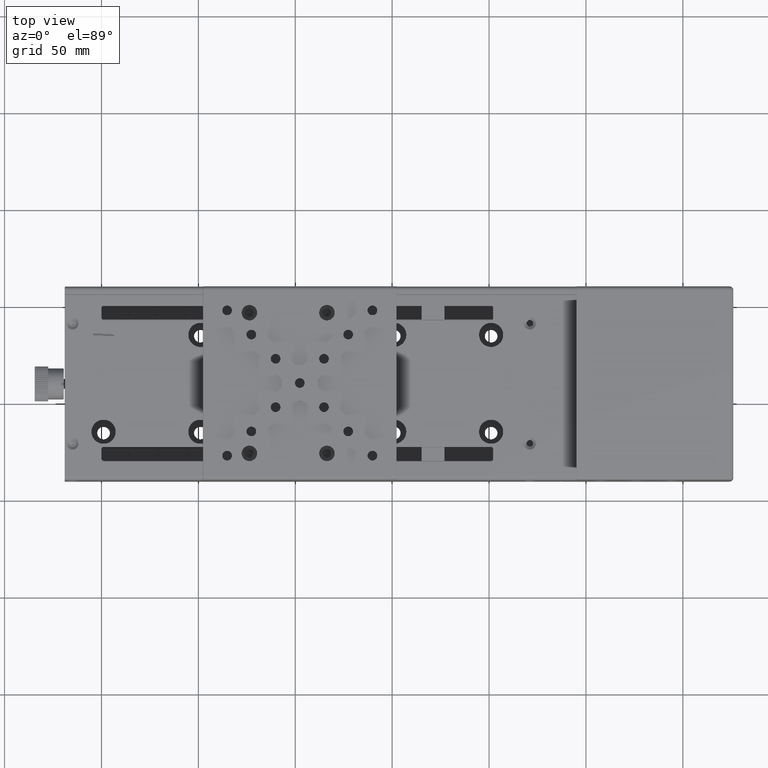
[diagram: clean part render]
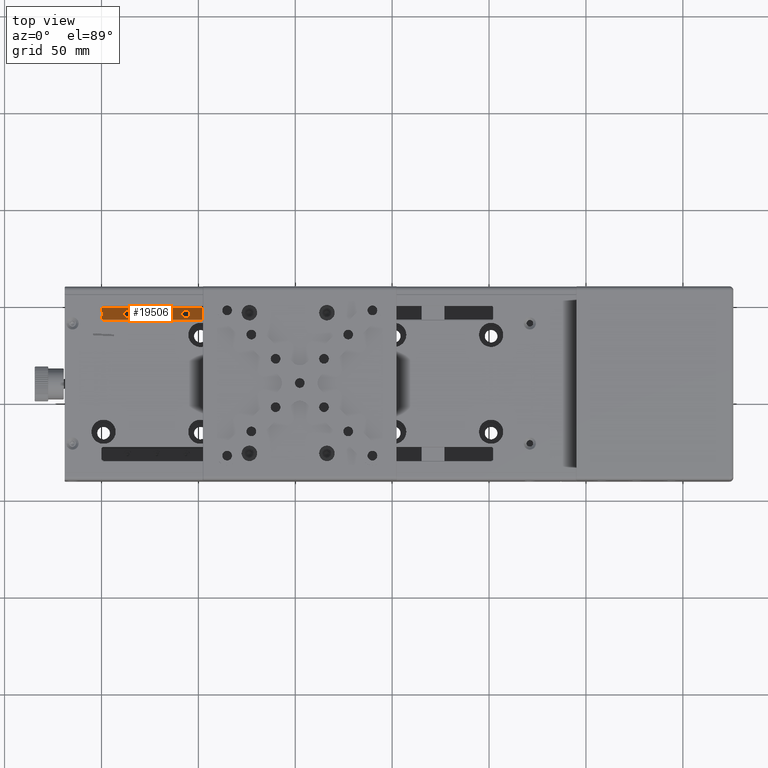
[diagram: same view with one face highlighted and labeled with its STEP entity id]
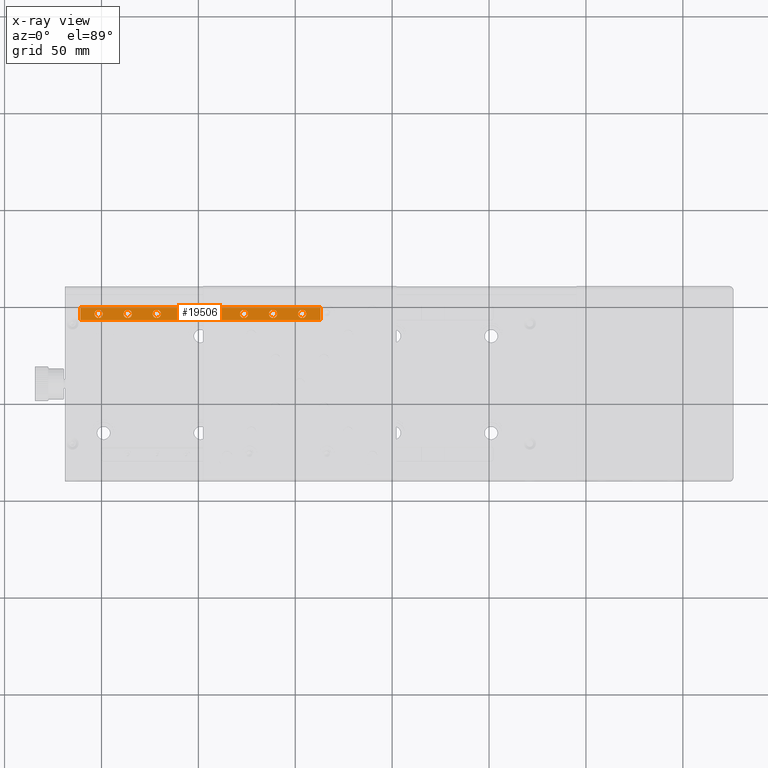
[diagram: x-ray of the same camera — body ghosted, the highlighted face saturated]
A machine part, top view. The second image highlights one B-rep face of the part: STEP entity #19506.
The next image is the same camera in x-ray: the body ghosted, the highlighted face saturated — about 0% of this face is hidden behind the body in this view.
In plain terms, the highlighted planar face has unit normal (0, 0, -1).
Its self-contained STEP definition (entity closure, byte-faithful):
#141 = VERTEX_POINT ( 'NONE', #1693 ) ;
#396 = CARTESIAN_POINT ( 'NONE',  ( -119.3607912002899951, 46.29424858742449800, 10.80000000000000071 ) ) ;
#442 = AXIS2_PLACEMENT_3D ( 'NONE', #9635, #38393, #14472 ) ;
#557 = DIRECTION ( 'NONE',  ( 0.000000000000000000, 0.000000000000000000, 1.000000000000000000 ) ) ;
#847 = VECTOR ( 'NONE', #65833, 1000.000000000000000 ) ;
#1196 = CARTESIAN_POINT ( 'NONE',  ( -136.4607912002899752, 46.29424858742449800, 10.80000000000000071 ) ) ;
#1414 = CIRCLE ( 'NONE', #49619, 2.099999999999990763 ) ;
#1433 = ORIENTED_EDGE ( 'NONE', *, *, #23198, .F. ) ;
#1693 = CARTESIAN_POINT ( 'NONE',  ( -48.56079120029010454, 46.29424858742449800, 10.80000000000000071 ) ) ;
#1811 = DIRECTION ( 'NONE',  ( 0.000000000000000000, 0.000000000000000000, 1.000000000000000000 ) ) ;
#2874 = CARTESIAN_POINT ( 'NONE',  ( -93.56079120029011165, 46.29424858742449800, 10.80000000000000071 ) ) ;
#2880 = DIRECTION ( 'NONE',  ( -1.000000000000000000, 0.000000000000000000, 0.000000000000000000 ) ) ;
#3011 = CIRCLE ( 'NONE', #5314, 2.100000000000004530 ) ;
#3241 = ORIENTED_EDGE ( 'NONE', *, *, #14862, .F. ) ;
#4495 = CARTESIAN_POINT ( 'NONE',  ( -36.96079120029010312, 42.79424858742454774, 10.80000000000000071 ) ) ;
#4522 = DIRECTION ( 'NONE',  ( 0.000000000000000000, 0.000000000000000000, 1.000000000000000000 ) ) ;
#4941 = FACE_BOUND ( 'NONE', #66453, .T. ) ;
#5314 = AXIS2_PLACEMENT_3D ( 'NONE', #52534, #8647, #42575 ) ;
#5318 = FACE_BOUND ( 'NONE', #48326, .T. ) ;
#6160 = DIRECTION ( 'NONE',  ( 0.000000000000000000, 0.000000000000000000, 1.000000000000000000 ) ) ;
#6773 = AXIS2_PLACEMENT_3D ( 'NONE', #53307, #43251, #30470 ) ;
#7120 = VERTEX_POINT ( 'NONE', #34749 ) ;
#7777 = CARTESIAN_POINT ( 'NONE',  ( -149.3607912002902083, 46.29424858742449800, 10.80000000000000071 ) ) ;
#7943 = AXIS2_PLACEMENT_3D ( 'NONE', #72066, #557, #56192 ) ;
#8266 = EDGE_CURVE ( 'NONE', #7120, #49718, #61297, .T. ) ;
#8647 = DIRECTION ( 'NONE',  ( 0.000000000000000000, 0.000000000000000000, 1.000000000000000000 ) ) ;
#8971 = DIRECTION ( 'NONE',  ( -1.000000000000000000, 0.000000000000000000, 0.000000000000000000 ) ) ;
#9076 = ORIENTED_EDGE ( 'NONE', *, *, #65692, .F. ) ;
#9635 = CARTESIAN_POINT ( 'NONE',  ( -106.4607912002900036, 46.29424858742449800, 10.80000000000000071 ) ) ;
#9749 = FACE_OUTER_BOUND ( 'NONE', #10503, .T. ) ;
#9879 = DIRECTION ( 'NONE',  ( 0.000000000000000000, 0.000000000000000000, 1.000000000000000000 ) ) ;
#10345 = ORIENTED_EDGE ( 'NONE', *, *, #32113, .F. ) ;
#10503 = EDGE_LOOP ( 'NONE', ( #12932, #1433, #65354, #56944 ) ) ;
#10568 = EDGE_CURVE ( 'NONE', #48257, #45232, #47032, .T. ) ;
#12352 = EDGE_LOOP ( 'NONE', ( #20516, #63888 ) ) ;
#12354 = DIRECTION ( 'NONE',  ( -1.000000000000000000, 0.000000000000000000, 0.000000000000000000 ) ) ;
#12462 = EDGE_CURVE ( 'NONE', #72781, #63702, #27221, .T. ) ;
#12607 = DIRECTION ( 'NONE',  ( -1.000000000000000000, 0.000000000000000000, 0.000000000000000000 ) ) ;
#12639 = CIRCLE ( 'NONE', #26766, 2.100000000000004530 ) ;
#12932 = ORIENTED_EDGE ( 'NONE', *, *, #23256, .F. ) ;
#13228 = CARTESIAN_POINT ( 'NONE',  ( -151.4607912002900036, 46.29424858742449800, 10.80000000000000071 ) ) ;
#13536 = VECTOR ( 'NONE', #21818, 1000.000000000000000 ) ;
#13691 = DIRECTION ( 'NONE',  ( 0.000000000000000000, 0.000000000000000000, 1.000000000000000000 ) ) ;
#14472 = DIRECTION ( 'NONE',  ( -1.000000000000000000, 0.000000000000000000, 0.000000000000000000 ) ) ;
#14481 = ORIENTED_EDGE ( 'NONE', *, *, #47800, .F. ) ;
#14862 = EDGE_CURVE ( 'NONE', #51476, #67064, #71429, .T. ) ;
#15065 = CARTESIAN_POINT ( 'NONE',  ( -91.46079120029010312, 46.29424858742449800, 10.80000000000000071 ) ) ;
#15238 = AXIS2_PLACEMENT_3D ( 'NONE', #19824, #1811, #2880 ) ;
#15302 = FACE_BOUND ( 'NONE', #29242, .T. ) ;
#15332 = CARTESIAN_POINT ( 'NONE',  ( -76.46079120029010312, 46.29424858742449800, 10.80000000000000071 ) ) ;
#15415 = EDGE_CURVE ( 'NONE', #67064, #51476, #60842, .T. ) ;
#15951 = EDGE_LOOP ( 'NONE', ( #42545, #31525 ) ) ;
#16784 = DIRECTION ( 'NONE',  ( 0.000000000000000000, 0.000000000000000000, 1.000000000000000000 ) ) ;
#17428 = CARTESIAN_POINT ( 'NONE',  ( -134.3607912002899809, 46.29424858742449800, 10.80000000000000071 ) ) ;
#18321 = CIRCLE ( 'NONE', #32405, 2.099999999999990763 ) ;
#19273 = CIRCLE ( 'NONE', #442, 2.100000000000004530 ) ;
#19506 = ADVANCED_FACE ( 'NONE', ( #15302, #50657, #4941, #49556, #27808, #49928, #20814, #5318, #9749 ), #43315, .F. ) ;
#19824 = CARTESIAN_POINT ( 'NONE',  ( -61.46079120029010312, 46.29424858742449800, 10.80000000000000071 ) ) ;
#20023 = CARTESIAN_POINT ( 'NONE',  ( -61.46079120029010312, 46.29424858742449800, 10.80000000000000071 ) ) ;
#20158 = ORIENTED_EDGE ( 'NONE', *, *, #10568, .F. ) ;
#20473 = CARTESIAN_POINT ( 'NONE',  ( -108.5607912002900122, 46.29424858742449800, 10.80000000000000071 ) ) ;
#20493 = ORIENTED_EDGE ( 'NONE', *, *, #54323, .F. ) ;
#20516 = ORIENTED_EDGE ( 'NONE', *, *, #21015, .F. ) ;
#20814 = FACE_BOUND ( 'NONE', #15951, .T. ) ;
#21015 = EDGE_CURVE ( 'NONE', #141, #37648, #35205, .T. ) ;
#21326 = AXIS2_PLACEMENT_3D ( 'NONE', #52034, #16784, #61753 ) ;
#21818 = DIRECTION ( 'NONE',  ( 1.000000000000000000, 0.000000000000000000, 0.000000000000000000 ) ) ;
#22264 = VERTEX_POINT ( 'NONE', #54069 ) ;
#22289 = DIRECTION ( 'NONE',  ( 0.000000000000000000, -1.000000000000000000, 0.000000000000000000 ) ) ;
#22662 = VECTOR ( 'NONE', #32380, 1000.000000000000000 ) ;
#22927 = LINE ( 'NONE', #4495, #42944 ) ;
#23198 = EDGE_CURVE ( 'NONE', #36763, #67464, #66445, .T. ) ;
#23256 = EDGE_CURVE ( 'NONE', #67464, #25721, #22927, .T. ) ;
#24294 = DIRECTION ( 'NONE',  ( -1.000000000000000000, 0.000000000000000000, 0.000000000000000000 ) ) ;
#25721 = VERTEX_POINT ( 'NONE', #50581 ) ;
#25835 = DIRECTION ( 'NONE',  ( -1.000000000000000000, 0.000000000000000000, 0.000000000000000000 ) ) ;
#26288 = CARTESIAN_POINT ( 'NONE',  ( -44.36079120029010170, 46.29424858742449800, 10.80000000000000071 ) ) ;
#26549 = DIRECTION ( 'NONE',  ( 0.000000000000000000, 0.000000000000000000, 1.000000000000000000 ) ) ;
#26766 = AXIS2_PLACEMENT_3D ( 'NONE', #15332, #53311, #58831 ) ;
#26882 = CIRCLE ( 'NONE', #66954, 2.100000000000004530 ) ;
#27112 = CARTESIAN_POINT ( 'NONE',  ( -63.56079120029009744, 46.29424858742449800, 10.80000000000000071 ) ) ;
#27221 = CIRCLE ( 'NONE', #21326, 2.100000000000004530 ) ;
#27808 = FACE_BOUND ( 'NONE', #12352, .T. ) ;
#29242 = EDGE_LOOP ( 'NONE', ( #10345, #20493 ) ) ;
#30470 = DIRECTION ( 'NONE',  ( -1.000000000000000000, 0.000000000000000000, 0.000000000000000000 ) ) ;
#31038 = VERTEX_POINT ( 'NONE', #67628 ) ;
#31525 = ORIENTED_EDGE ( 'NONE', *, *, #48043, .F. ) ;
#32113 = EDGE_CURVE ( 'NONE', #22264, #59761, #18321, .T. ) ;
#32253 = DIRECTION ( 'NONE',  ( 0.000000000000000000, 0.000000000000000000, -1.000000000000000000 ) ) ;
#32380 = DIRECTION ( 'NONE',  ( -1.000000000000000000, 0.000000000000000000, 0.000000000000000000 ) ) ;
#32405 = AXIS2_PLACEMENT_3D ( 'NONE', #13228, #52652, #24294 ) ;
#32910 = CARTESIAN_POINT ( 'NONE',  ( -46.46079120029009601, 46.29424858742449800, 10.80000000000000071 ) ) ;
#33193 = CARTESIAN_POINT ( 'NONE',  ( -123.5607912002900122, 46.29424858742449800, 10.80000000000000071 ) ) ;
#33650 = DIRECTION ( 'NONE',  ( -1.000000000000000000, 0.000000000000000000, 0.000000000000000000 ) ) ;
#33765 = AXIS2_PLACEMENT_3D ( 'NONE', #15065, #9879, #38263 ) ;
#33993 = EDGE_LOOP ( 'NONE', ( #60649, #39204 ) ) ;
#34749 = CARTESIAN_POINT ( 'NONE',  ( -138.5607912002899980, 46.29424858742449800, 10.80000000000000071 ) ) ;
#35205 = CIRCLE ( 'NONE', #57550, 2.099999999999997868 ) ;
#36156 = ORIENTED_EDGE ( 'NONE', *, *, #44749, .F. ) ;
#36187 = AXIS2_PLACEMENT_3D ( 'NONE', #20023, #64294, #8971 ) ;
#36705 = EDGE_CURVE ( 'NONE', #41111, #36763, #38903, .T. ) ;
#36763 = VERTEX_POINT ( 'NONE', #39654 ) ;
#36949 = EDGE_CURVE ( 'NONE', #45232, #48257, #40898, .T. ) ;
#37648 = VERTEX_POINT ( 'NONE', #26288 ) ;
#38263 = DIRECTION ( 'NONE',  ( -1.000000000000000000, 0.000000000000000000, 0.000000000000000000 ) ) ;
#38393 = DIRECTION ( 'NONE',  ( 0.000000000000000000, 0.000000000000000000, 1.000000000000000000 ) ) ;
#38774 = CARTESIAN_POINT ( 'NONE',  ( -219.9607912002900036, 49.59424858742449516, 10.80000000000000071 ) ) ;
#38903 = LINE ( 'NONE', #49225, #847 ) ;
#39186 = CARTESIAN_POINT ( 'NONE',  ( -136.4607912002899752, 46.29424858742449800, 10.80000000000000071 ) ) ;
#39204 = ORIENTED_EDGE ( 'NONE', *, *, #62389, .F. ) ;
#39372 = DIRECTION ( 'NONE',  ( -1.000000000000000000, 0.000000000000000000, 0.000000000000000000 ) ) ;
#39654 = CARTESIAN_POINT ( 'NONE',  ( -160.9607912002900036, 49.59424858742449516, 10.80000000000000071 ) ) ;
#39839 = EDGE_CURVE ( 'NONE', #25721, #41111, #70377, .T. ) ;
#40898 = CIRCLE ( 'NONE', #36187, 2.100000000000004530 ) ;
#40968 = EDGE_LOOP ( 'NONE', ( #36156, #9076 ) ) ;
#41111 = VERTEX_POINT ( 'NONE', #71835 ) ;
#42104 = CIRCLE ( 'NONE', #6773, 2.099999999999997868 ) ;
#42545 = ORIENTED_EDGE ( 'NONE', *, *, #12462, .F. ) ;
#42575 = DIRECTION ( 'NONE',  ( -1.000000000000000000, 0.000000000000000000, 0.000000000000000000 ) ) ;
#42944 = VECTOR ( 'NONE', #45413, 1000.000000000000000 ) ;
#43251 = DIRECTION ( 'NONE',  ( 0.000000000000000000, 0.000000000000000000, 1.000000000000000000 ) ) ;
#43315 = PLANE ( 'NONE',  #72835 ) ;
#44461 = VERTEX_POINT ( 'NONE', #20473 ) ;
#44749 = EDGE_CURVE ( 'NONE', #44461, #31038, #19273, .T. ) ;
#45232 = VERTEX_POINT ( 'NONE', #50103 ) ;
#45413 = DIRECTION ( 'NONE',  ( 0.000000000000000000, -1.000000000000000000, 0.000000000000000000 ) ) ;
#45624 = ORIENTED_EDGE ( 'NONE', *, *, #69276, .F. ) ;
#47032 = CIRCLE ( 'NONE', #15238, 2.100000000000004530 ) ;
#47800 = EDGE_CURVE ( 'NONE', #62790, #50113, #53764, .T. ) ;
#48043 = EDGE_CURVE ( 'NONE', #63702, #72781, #12639, .T. ) ;
#48253 = CARTESIAN_POINT ( 'NONE',  ( -219.9607912002900036, 42.99424858742454347, 10.80000000000000071 ) ) ;
#48257 = VERTEX_POINT ( 'NONE', #27112 ) ;
#48326 = EDGE_LOOP ( 'NONE', ( #56507, #3241 ) ) ;
#49225 = CARTESIAN_POINT ( 'NONE',  ( -160.9607912002900036, 42.79424858742454774, 10.80000000000000071 ) ) ;
#49556 = FACE_BOUND ( 'NONE', #40968, .T. ) ;
#49619 = AXIS2_PLACEMENT_3D ( 'NONE', #39186, #61669, #33650 ) ;
#49689 = EDGE_CURVE ( 'NONE', #37648, #141, #42104, .T. ) ;
#49718 = VERTEX_POINT ( 'NONE', #17428 ) ;
#49928 = FACE_BOUND ( 'NONE', #56779, .T. ) ;
#50103 = CARTESIAN_POINT ( 'NONE',  ( -59.36079120029010170, 46.29424858742449800, 10.80000000000000071 ) ) ;
#50113 = VERTEX_POINT ( 'NONE', #33193 ) ;
#50220 = DIRECTION ( 'NONE',  ( -1.000000000000000000, 0.000000000000000000, 0.000000000000000000 ) ) ;
#50581 = CARTESIAN_POINT ( 'NONE',  ( -36.96079120029010312, 42.99424858742454347, 10.80000000000000071 ) ) ;
#50657 = FACE_BOUND ( 'NONE', #33993, .T. ) ;
#51408 = AXIS2_PLACEMENT_3D ( 'NONE', #72908, #6160, #39372 ) ;
#51427 = CARTESIAN_POINT ( 'NONE',  ( -91.46079120029010312, 46.29424858742449800, 10.80000000000000071 ) ) ;
#51476 = VERTEX_POINT ( 'NONE', #63774 ) ;
#51615 = CARTESIAN_POINT ( 'NONE',  ( -74.36079120029009459, 46.29424858742449800, 10.80000000000000071 ) ) ;
#52034 = CARTESIAN_POINT ( 'NONE',  ( -76.46079120029010312, 46.29424858742449800, 10.80000000000000071 ) ) ;
#52534 = CARTESIAN_POINT ( 'NONE',  ( -106.4607912002900036, 46.29424858742449800, 10.80000000000000071 ) ) ;
#52652 = DIRECTION ( 'NONE',  ( 0.000000000000000000, 0.000000000000000000, 1.000000000000000000 ) ) ;
#52730 = CARTESIAN_POINT ( 'NONE',  ( -78.56079120029009744, 46.29424858742449800, 10.80000000000000071 ) ) ;
#53307 = CARTESIAN_POINT ( 'NONE',  ( -46.46079120029009601, 46.29424858742449800, 10.80000000000000071 ) ) ;
#53311 = DIRECTION ( 'NONE',  ( 0.000000000000000000, 0.000000000000000000, 1.000000000000000000 ) ) ;
#53764 = CIRCLE ( 'NONE', #51408, 2.100000000000004530 ) ;
#54069 = CARTESIAN_POINT ( 'NONE',  ( -153.5607912002899695, 46.29424858742449800, 10.80000000000000071 ) ) ;
#54323 = EDGE_CURVE ( 'NONE', #59761, #22264, #65791, .T. ) ;
#56192 = DIRECTION ( 'NONE',  ( -1.000000000000000000, 0.000000000000000000, 0.000000000000000000 ) ) ;
#56507 = ORIENTED_EDGE ( 'NONE', *, *, #15415, .F. ) ;
#56573 = DIRECTION ( 'NONE',  ( 0.000000000000000000, 0.000000000000000000, 1.000000000000000000 ) ) ;
#56598 = AXIS2_PLACEMENT_3D ( 'NONE', #1196, #13691, #12607 ) ;
#56779 = EDGE_LOOP ( 'NONE', ( #20158, #65146 ) ) ;
#56944 = ORIENTED_EDGE ( 'NONE', *, *, #39839, .F. ) ;
#57315 = AXIS2_PLACEMENT_3D ( 'NONE', #51427, #56573, #12354 ) ;
#57550 = AXIS2_PLACEMENT_3D ( 'NONE', #32910, #4522, #50220 ) ;
#57991 = CARTESIAN_POINT ( 'NONE',  ( -36.96079120029005338, 49.59424858742449516, 10.80000000000000071 ) ) ;
#58831 = DIRECTION ( 'NONE',  ( -1.000000000000000000, 0.000000000000000000, 0.000000000000000000 ) ) ;
#59761 = VERTEX_POINT ( 'NONE', #7777 ) ;
#60649 = ORIENTED_EDGE ( 'NONE', *, *, #8266, .F. ) ;
#60842 = CIRCLE ( 'NONE', #57315, 2.100000000000004530 ) ;
#61297 = CIRCLE ( 'NONE', #56598, 2.099999999999990763 ) ;
#61348 = CARTESIAN_POINT ( 'NONE',  ( -219.9607912002900036, 42.79424858742454774, 10.80000000000000071 ) ) ;
#61669 = DIRECTION ( 'NONE',  ( 0.000000000000000000, 0.000000000000000000, 1.000000000000000000 ) ) ;
#61753 = DIRECTION ( 'NONE',  ( -1.000000000000000000, 0.000000000000000000, 0.000000000000000000 ) ) ;
#62389 = EDGE_CURVE ( 'NONE', #49718, #7120, #1414, .T. ) ;
#62790 = VERTEX_POINT ( 'NONE', #396 ) ;
#63702 = VERTEX_POINT ( 'NONE', #51615 ) ;
#63774 = CARTESIAN_POINT ( 'NONE',  ( -89.36079120029009459, 46.29424858742449800, 10.80000000000000071 ) ) ;
#63888 = ORIENTED_EDGE ( 'NONE', *, *, #49689, .F. ) ;
#64294 = DIRECTION ( 'NONE',  ( 0.000000000000000000, 0.000000000000000000, 1.000000000000000000 ) ) ;
#65146 = ORIENTED_EDGE ( 'NONE', *, *, #36949, .F. ) ;
#65354 = ORIENTED_EDGE ( 'NONE', *, *, #36705, .F. ) ;
#65692 = EDGE_CURVE ( 'NONE', #31038, #44461, #3011, .T. ) ;
#65791 = CIRCLE ( 'NONE', #7943, 2.099999999999990763 ) ;
#65833 = DIRECTION ( 'NONE',  ( 0.000000000000000000, 1.000000000000000000, 0.000000000000000000 ) ) ;
#66445 = LINE ( 'NONE', #38774, #13536 ) ;
#66453 = EDGE_LOOP ( 'NONE', ( #45624, #14481 ) ) ;
#66954 = AXIS2_PLACEMENT_3D ( 'NONE', #71894, #26549, #25835 ) ;
#67064 = VERTEX_POINT ( 'NONE', #2874 ) ;
#67464 = VERTEX_POINT ( 'NONE', #57991 ) ;
#67628 = CARTESIAN_POINT ( 'NONE',  ( -104.3607912002899951, 46.29424858742449800, 10.80000000000000071 ) ) ;
#69276 = EDGE_CURVE ( 'NONE', #50113, #62790, #26882, .T. ) ;
#70377 = LINE ( 'NONE', #48253, #22662 ) ;
#71429 = CIRCLE ( 'NONE', #33765, 2.100000000000004530 ) ;
#71835 = CARTESIAN_POINT ( 'NONE',  ( -160.9607912002900036, 42.99424858742454347, 10.80000000000000071 ) ) ;
#71894 = CARTESIAN_POINT ( 'NONE',  ( -121.4607912002900036, 46.29424858742449800, 10.80000000000000071 ) ) ;
#72066 = CARTESIAN_POINT ( 'NONE',  ( -151.4607912002900036, 46.29424858742449800, 10.80000000000000071 ) ) ;
#72781 = VERTEX_POINT ( 'NONE', #52730 ) ;
#72835 = AXIS2_PLACEMENT_3D ( 'NONE', #61348, #32253, #22289 ) ;
#72908 = CARTESIAN_POINT ( 'NONE',  ( -121.4607912002900036, 46.29424858742449800, 10.80000000000000071 ) ) ;